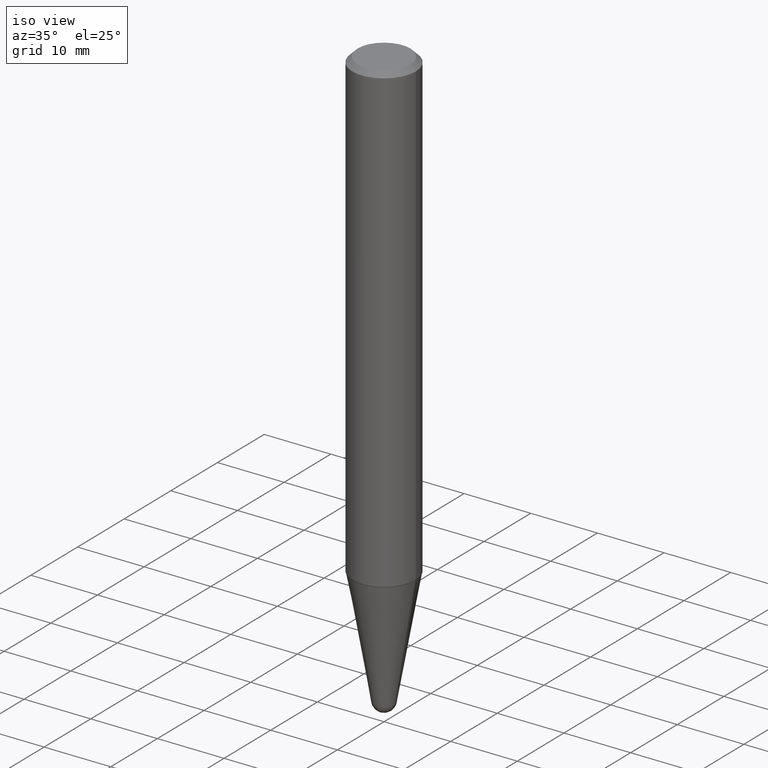
[diagram: clean part render]
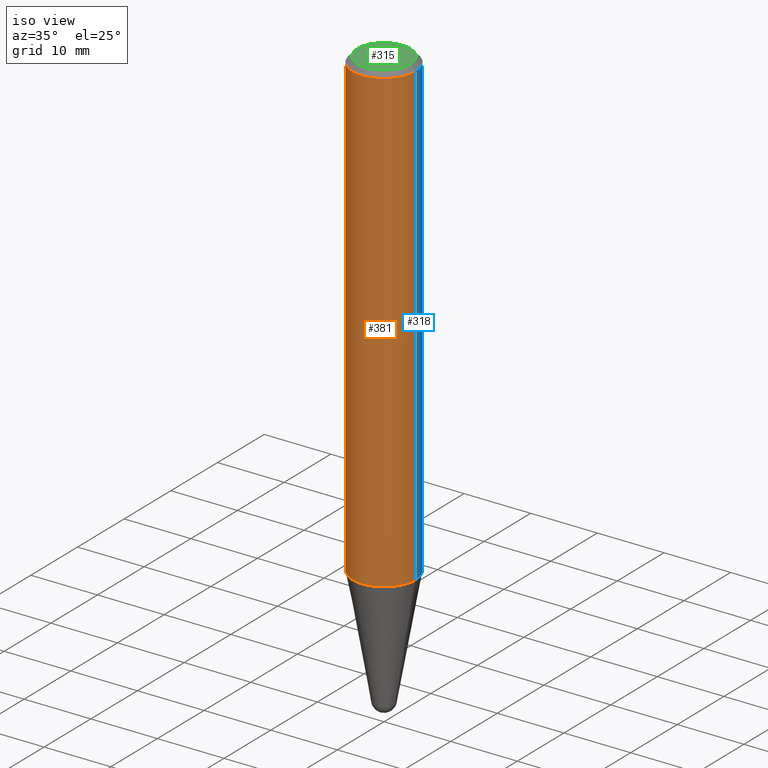
[diagram: same view with three faces highlighted in distinct colors, each labeled with its STEP entity id]
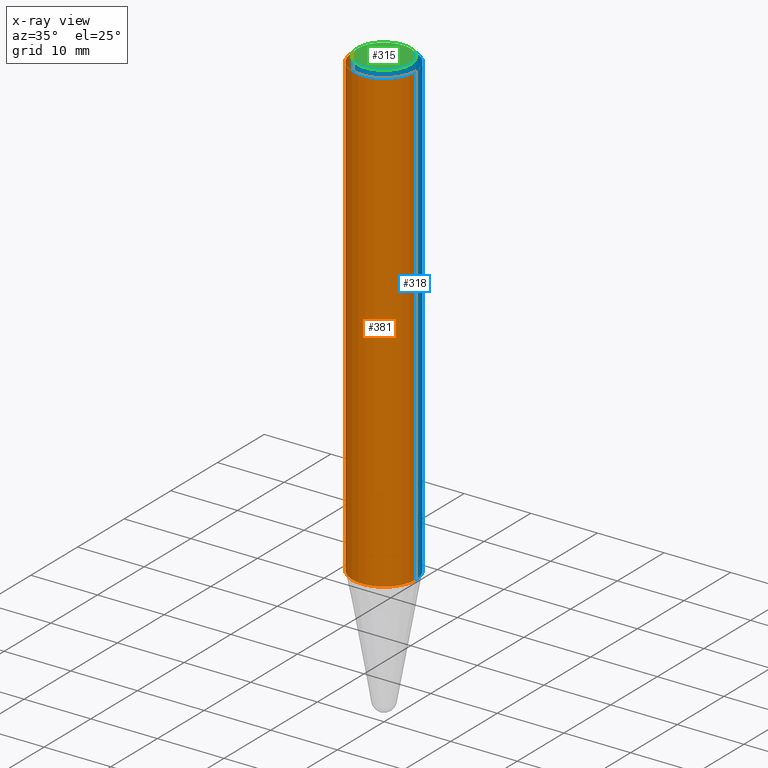
[diagram: x-ray of the same camera — body ghosted, the three highlighted faces saturated]
A machine part, iso view with three faces highlighted in distinct colors.
The next image is the same camera in x-ray (body ghosted, the three faces saturated) — at least one of them is partly hidden behind the body in this view.
Their STEP definitions:

[orange] entity #381 — the highlighted cylindrical surface (partial cylindrical patch) has radius 4.7625 mm, axis along (-0, 0, 1).
#27 = DIRECTION ( 'NONE',  ( 1.000000000000000000, -6.982962677686266711E-15, 0.000000000000000000 ) ) ;
#58 = DIRECTION ( 'NONE',  ( -2.445468806185136877E-29, 3.491481338843145188E-15, 1.000000000000000000 ) ) ;
#61 = CARTESIAN_POINT ( 'NONE',  ( 7.642090019328561499E-31, -1.091087918388484350E-16, -0.03125000000000003469 ) ) ;
#68 = VERTEX_POINT ( 'NONE', #281 ) ;
#71 = FACE_OUTER_BOUND ( 'NONE', #78, .T. ) ;
#78 = EDGE_LOOP ( 'NONE', ( #340, #121, #197, #308 ) ) ;
#87 = VERTEX_POINT ( 'NONE', #452 ) ;
#92 = CARTESIAN_POINT ( 'NONE',  ( -0.1874999999999999722, -3.515420659890972439E-15, -0.03125000000000003469 ) ) ;
#95 = LINE ( 'NONE', #380, #321 ) ;
#104 = VERTEX_POINT ( 'NONE', #92 ) ;
#106 = EDGE_CURVE ( 'NONE', #87, #215, #305, .T. ) ;
#110 = LINE ( 'NONE', #176, #391 ) ;
#121 = ORIENTED_EDGE ( 'NONE', *, *, #106, .T. ) ;
#127 = AXIS2_PLACEMENT_3D ( 'NONE', #61, #210, #27 ) ;
#130 = CARTESIAN_POINT ( 'NONE',  ( 6.714318813664270048E-29, -9.586267787043478574E-15, -2.745616217504904810 ) ) ;
#132 = EDGE_CURVE ( 'NONE', #215, #68, #95, .T. ) ;
#176 = CARTESIAN_POINT ( 'NONE',  ( -0.1875000000000001943, 1.332267629550191398E-15, 5.931196827434205055E-16 ) ) ;
#183 = CARTESIAN_POINT ( 'NONE',  ( -1.450455682483482035E-44, 2.070866303999251778E-30, 5.931196827434296760E-16 ) ) ;
#192 = AXIS2_PLACEMENT_3D ( 'NONE', #183, #324, #374 ) ;
#197 = ORIENTED_EDGE ( 'NONE', *, *, #132, .T. ) ;
#206 = EDGE_CURVE ( 'NONE', #104, #68, #226, .T. ) ;
#210 = DIRECTION ( 'NONE',  ( -2.445468806185136597E-29, 3.491481338843145583E-15, 1.000000000000000000 ) ) ;
#215 = VERTEX_POINT ( 'NONE', #457 ) ;
#226 = CIRCLE ( 'NONE', #127, 0.1874999999999999722 ) ;
#281 = CARTESIAN_POINT ( 'NONE',  ( 0.1874999999999999722, -1.418414293905023123E-15, -0.03125000000000003469 ) ) ;
#286 = DIRECTION ( 'NONE',  ( -2.445468806185136877E-29, 3.491481338843145188E-15, 1.000000000000000000 ) ) ;
#305 = CIRCLE ( 'NONE', #437, 0.1875000000000003608 ) ;
#308 = ORIENTED_EDGE ( 'NONE', *, *, #206, .F. ) ;
#321 = VECTOR ( 'NONE', #58, 39.37007874015748143 ) ;
#323 = EDGE_CURVE ( 'NONE', #87, #104, #110, .T. ) ;
#324 = DIRECTION ( 'NONE',  ( -2.445468806185136597E-29, 3.491481338843145583E-15, 1.000000000000000000 ) ) ;
#340 = ORIENTED_EDGE ( 'NONE', *, *, #323, .F. ) ;
#357 = CYLINDRICAL_SURFACE ( 'NONE', #192, 0.1875000000000001943 ) ;
#374 = DIRECTION ( 'NONE',  ( 1.000000000000000000, -6.982962677686265922E-15, 4.852736867747361162E-29 ) ) ;
#380 = CARTESIAN_POINT ( 'NONE',  ( 0.1875000000000001943, -1.309305502066174022E-15, 5.931196827434387479E-16 ) ) ;
#381 = ADVANCED_FACE ( 'NONE', ( #71 ), #357, .T. ) ;
#391 = VECTOR ( 'NONE', #286, 39.37007874015748143 ) ;
#420 = DIRECTION ( 'NONE',  ( -2.445468806185136597E-29, 3.491481338843145583E-15, 1.000000000000000000 ) ) ;
#423 = DIRECTION ( 'NONE',  ( 1.000000000000000000, -6.982962677686269866E-15, 0.000000000000000000 ) ) ;
#437 = AXIS2_PLACEMENT_3D ( 'NONE', #130, #420, #423 ) ;
#452 = CARTESIAN_POINT ( 'NONE',  ( -0.1875000000000003608, -8.254000157493289148E-15, -2.745616217504904810 ) ) ;
#457 = CARTESIAN_POINT ( 'NONE',  ( 0.1875000000000003608, -1.089557328910965674E-14, -2.745616217504904810 ) ) ;

[blue] entity #318 — the highlighted cylindrical surface (partial cylindrical patch) has radius 4.7625 mm, axis along (-0, 0, 1).
#4 = FACE_OUTER_BOUND ( 'NONE', #43, .T. ) ;
#43 = EDGE_LOOP ( 'NONE', ( #80, #414, #334, #219 ) ) ;
#56 = EDGE_CURVE ( 'NONE', #215, #87, #259, .T. ) ;
#58 = DIRECTION ( 'NONE',  ( -2.445468806185136877E-29, 3.491481338843145188E-15, 1.000000000000000000 ) ) ;
#68 = VERTEX_POINT ( 'NONE', #281 ) ;
#80 = ORIENTED_EDGE ( 'NONE', *, *, #56, .T. ) ;
#81 = EDGE_CURVE ( 'NONE', #68, #104, #175, .T. ) ;
#87 = VERTEX_POINT ( 'NONE', #452 ) ;
#92 = CARTESIAN_POINT ( 'NONE',  ( -0.1874999999999999722, -3.515420659890972439E-15, -0.03125000000000003469 ) ) ;
#95 = LINE ( 'NONE', #380, #321 ) ;
#104 = VERTEX_POINT ( 'NONE', #92 ) ;
#110 = LINE ( 'NONE', #176, #391 ) ;
#125 = CARTESIAN_POINT ( 'NONE',  ( 7.642090019328561499E-31, -1.091087918388484350E-16, -0.03125000000000003469 ) ) ;
#132 = EDGE_CURVE ( 'NONE', #215, #68, #95, .T. ) ;
#139 = CARTESIAN_POINT ( 'NONE',  ( -1.450455682483482035E-44, 2.070866303999251778E-30, 5.931196827434296760E-16 ) ) ;
#148 = DIRECTION ( 'NONE',  ( -2.445468806185136597E-29, 3.491481338843145583E-15, 1.000000000000000000 ) ) ;
#165 = CARTESIAN_POINT ( 'NONE',  ( 6.714318813664270048E-29, -9.586267787043478574E-15, -2.745616217504904810 ) ) ;
#175 = CIRCLE ( 'NONE', #451, 0.1874999999999999722 ) ;
#176 = CARTESIAN_POINT ( 'NONE',  ( -0.1875000000000001943, 1.332267629550191398E-15, 5.931196827434205055E-16 ) ) ;
#215 = VERTEX_POINT ( 'NONE', #457 ) ;
#219 = ORIENTED_EDGE ( 'NONE', *, *, #132, .F. ) ;
#238 = DIRECTION ( 'NONE',  ( 1.000000000000000000, -6.982962677686269866E-15, 0.000000000000000000 ) ) ;
#254 = CYLINDRICAL_SURFACE ( 'NONE', #384, 0.1875000000000001943 ) ;
#259 = CIRCLE ( 'NONE', #408, 0.1875000000000003608 ) ;
#274 = DIRECTION ( 'NONE',  ( -2.445468806185136597E-29, 3.491481338843145583E-15, 1.000000000000000000 ) ) ;
#281 = CARTESIAN_POINT ( 'NONE',  ( 0.1874999999999999722, -1.418414293905023123E-15, -0.03125000000000003469 ) ) ;
#285 = DIRECTION ( 'NONE',  ( 1.000000000000000000, -6.982962677686266711E-15, 0.000000000000000000 ) ) ;
#286 = DIRECTION ( 'NONE',  ( -2.445468806185136877E-29, 3.491481338843145188E-15, 1.000000000000000000 ) ) ;
#312 = DIRECTION ( 'NONE',  ( -2.445468806185136597E-29, 3.491481338843145583E-15, 1.000000000000000000 ) ) ;
#318 = ADVANCED_FACE ( 'NONE', ( #4 ), #254, .T. ) ;
#321 = VECTOR ( 'NONE', #58, 39.37007874015748143 ) ;
#323 = EDGE_CURVE ( 'NONE', #87, #104, #110, .T. ) ;
#334 = ORIENTED_EDGE ( 'NONE', *, *, #81, .F. ) ;
#380 = CARTESIAN_POINT ( 'NONE',  ( 0.1875000000000001943, -1.309305502066174022E-15, 5.931196827434387479E-16 ) ) ;
#384 = AXIS2_PLACEMENT_3D ( 'NONE', #139, #148, #436 ) ;
#391 = VECTOR ( 'NONE', #286, 39.37007874015748143 ) ;
#408 = AXIS2_PLACEMENT_3D ( 'NONE', #165, #312, #238 ) ;
#414 = ORIENTED_EDGE ( 'NONE', *, *, #323, .T. ) ;
#436 = DIRECTION ( 'NONE',  ( 1.000000000000000000, -6.982962677686265922E-15, 4.852736867747361162E-29 ) ) ;
#451 = AXIS2_PLACEMENT_3D ( 'NONE', #125, #274, #285 ) ;
#452 = CARTESIAN_POINT ( 'NONE',  ( -0.1875000000000003608, -8.254000157493289148E-15, -2.745616217504904810 ) ) ;
#457 = CARTESIAN_POINT ( 'NONE',  ( 0.1875000000000003608, -1.089557328910965674E-14, -2.745616217504904810 ) ) ;

[green] entity #315 — the highlighted planar face has unit normal (0, -0, -1).
#3 = VERTEX_POINT ( 'NONE', #123 ) ;
#5 = ORIENTED_EDGE ( 'NONE', *, *, #425, .T. ) ;
#16 = CARTESIAN_POINT ( 'NONE',  ( 1.440017168340129706E-44, -2.055962872295446805E-30, -5.888511702533292493E-16 ) ) ;
#75 = AXIS2_PLACEMENT_3D ( 'NONE', #287, #186, #218 ) ;
#85 = EDGE_LOOP ( 'NONE', ( #435, #5 ) ) ;
#97 = CARTESIAN_POINT ( 'NONE',  ( 1.440017168340129706E-44, -2.055962872295446805E-30, -5.888511702533292493E-16 ) ) ;
#123 = CARTESIAN_POINT ( 'NONE',  ( 0.1562500000000004163, -1.233702489286408510E-15, -5.888511702533211635E-16 ) ) ;
#151 = CIRCLE ( 'NONE', #182, 0.1562500000000004163 ) ;
#162 = DIRECTION ( 'NONE',  ( 1.000000000000000000, -6.982962677686266711E-15, 4.891558762689331823E-29 ) ) ;
#182 = AXIS2_PLACEMENT_3D ( 'NONE', #97, #247, #213 ) ;
#186 = DIRECTION ( 'NONE',  ( 2.438088387897960049E-29, -3.491481338843145188E-15, -1.000000000000000000 ) ) ;
#213 = DIRECTION ( 'NONE',  ( 1.000000000000000000, -6.982962677686266711E-15, 4.891558762689331823E-29 ) ) ;
#218 = DIRECTION ( 'NONE',  ( -1.000000000000000000, 6.982962677686265922E-15, -4.876176775795935793E-29 ) ) ;
#223 = VERTEX_POINT ( 'NONE', #427 ) ;
#235 = AXIS2_PLACEMENT_3D ( 'NONE', #16, #335, #162 ) ;
#236 = EDGE_CURVE ( 'NONE', #223, #3, #151, .T. ) ;
#247 = DIRECTION ( 'NONE',  ( -2.445468806185136597E-29, 3.491481338843145583E-15, 1.000000000000000000 ) ) ;
#287 = CARTESIAN_POINT ( 'NONE',  ( 7.200085841700648531E-45, -1.027981436147723403E-30, -2.944255851266646246E-16 ) ) ;
#315 = ADVANCED_FACE ( 'NONE', ( #354 ), #432, .F. ) ;
#335 = DIRECTION ( 'NONE',  ( -2.445468806185136597E-29, 3.491481338843145583E-15, 1.000000000000000000 ) ) ;
#354 = FACE_OUTER_BOUND ( 'NONE', #85, .T. ) ;
#425 = EDGE_CURVE ( 'NONE', #3, #223, #453, .T. ) ;
#427 = CARTESIAN_POINT ( 'NONE',  ( -0.1562500000000004163, 1.145642314307903329E-15, -5.888511702533370393E-16 ) ) ;
#432 = PLANE ( 'NONE',  #75 ) ;
#435 = ORIENTED_EDGE ( 'NONE', *, *, #236, .T. ) ;
#453 = CIRCLE ( 'NONE', #235, 0.1562500000000004163 ) ;